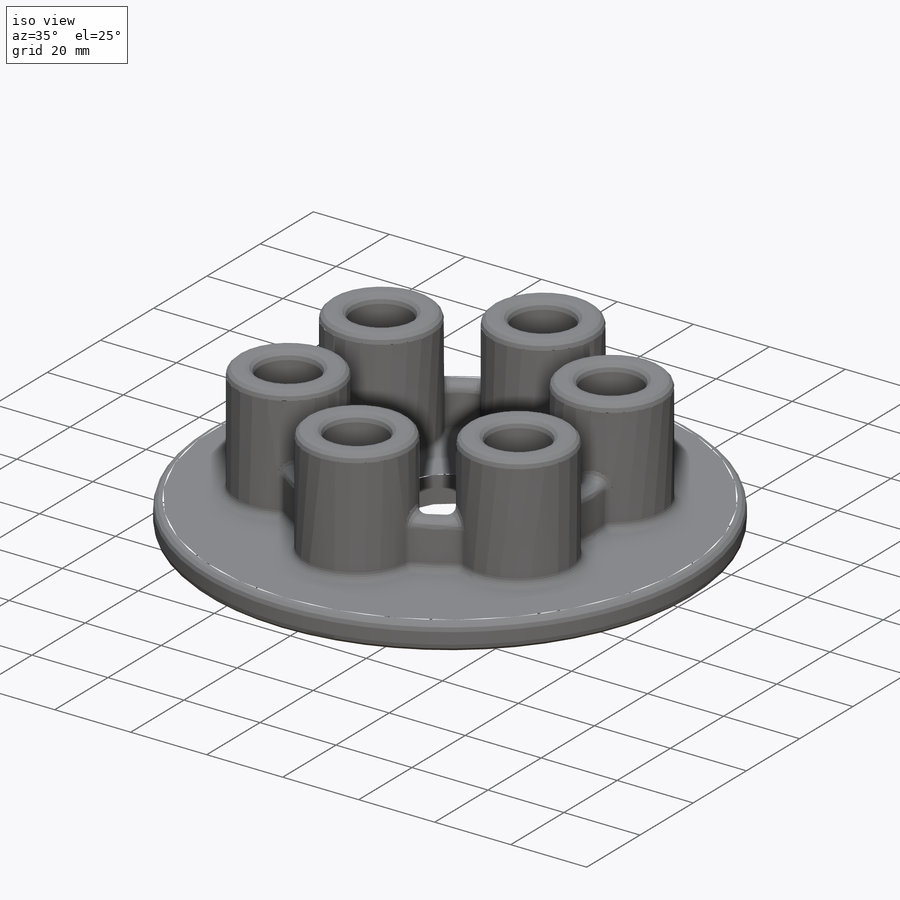
[diagram: iso view]
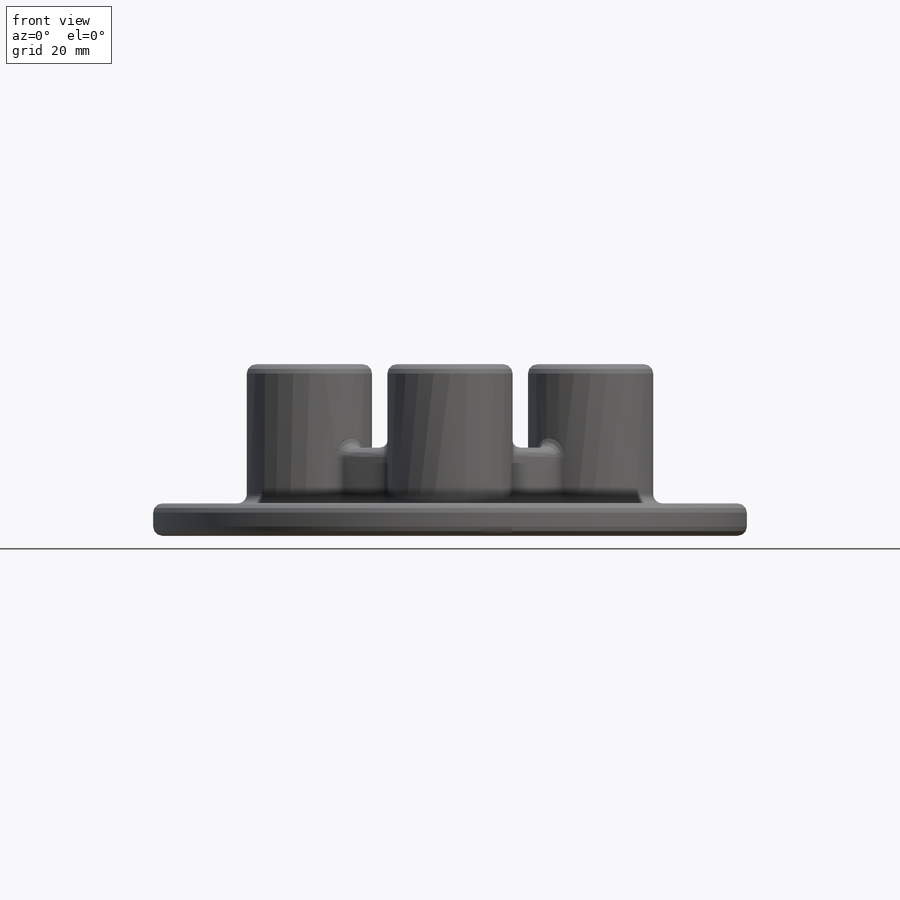
[diagram: front view]
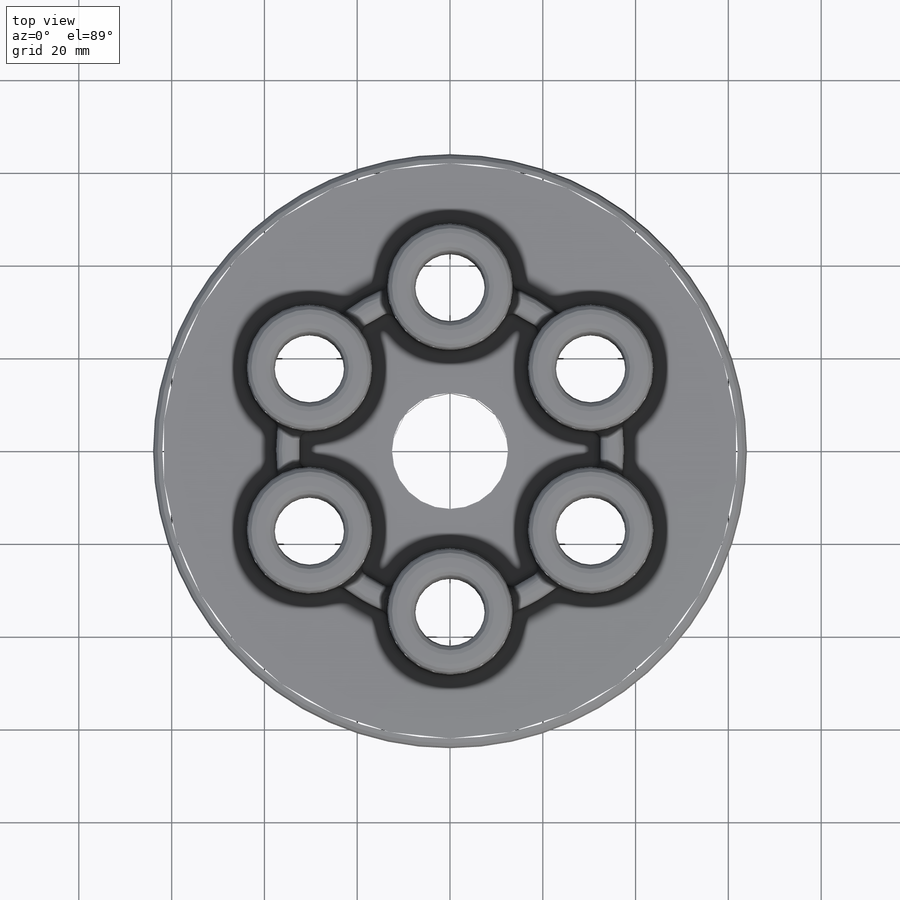
[diagram: top view]
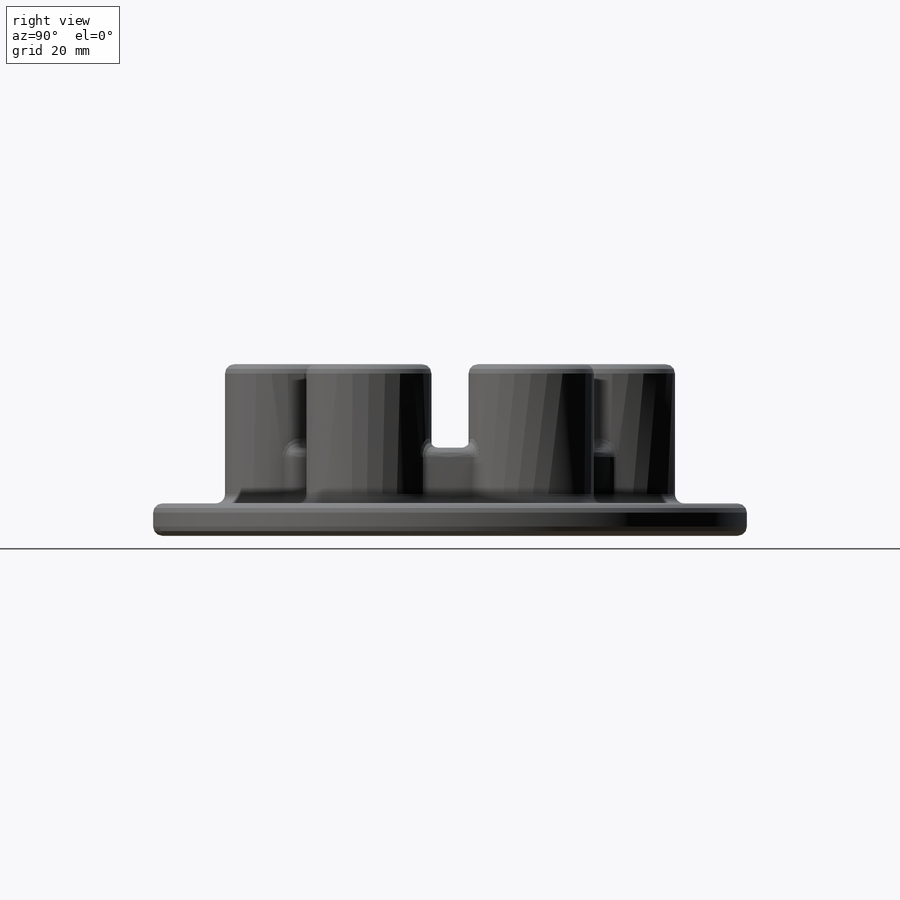
[diagram: right view]
SOLIDWORKS PART (.sldprt)
format: sldprt  version: not decoded by parser v0  size: 662,016 bytes
history: native  units: mm
features: sketch x5, extrude x3, fillet x3, cut_extrude x2, material x1, pattern_circular x1 (+13 scaffold rows collapsed)
feature tree (28):
  scaffold x13  (default folders/planes/origin — collapsed)
  material  "Material <not specified>"
  sketch  "Sketch1"  dims[D1=128.0mm]
  extrude  "Boss-Extrude1"  Depth=7mm
  sketch  "Sketch5"  dims[D1=75.0mm D2=5.0mm]
  extrude  "Boss-Extrude4"  Depth=12mm
  sketch  "Sketch6"  dims[D1=25.0mm]
  cut_extrude  "Cut-Extrude1"  [1 undecoded]
  fillet  "Fillet1"  Radius=2mm
  sketch  "Sketch9"  dims[D1=27.0mm D2=35.0mm]
  extrude  "Boss-Extrude5"  Depth=30mm
  sketch  "Sketch10"  dims[D1=15.0mm]
  cut_extrude  "Cut-Extrude2"  [1 undecoded]
  fillet  "Fillet2"  Radius=2mm
  pattern_circular  "CirPattern1"  Count=6 Angle=360deg
  fillet  "Fillet3"  Radius=2mm
decode coverage: 12 of 14 modeling features carry decoded parameters
note: 2 parameter values undecoded
note: suppression state not decoded; provenance and decode notes live in map.json
